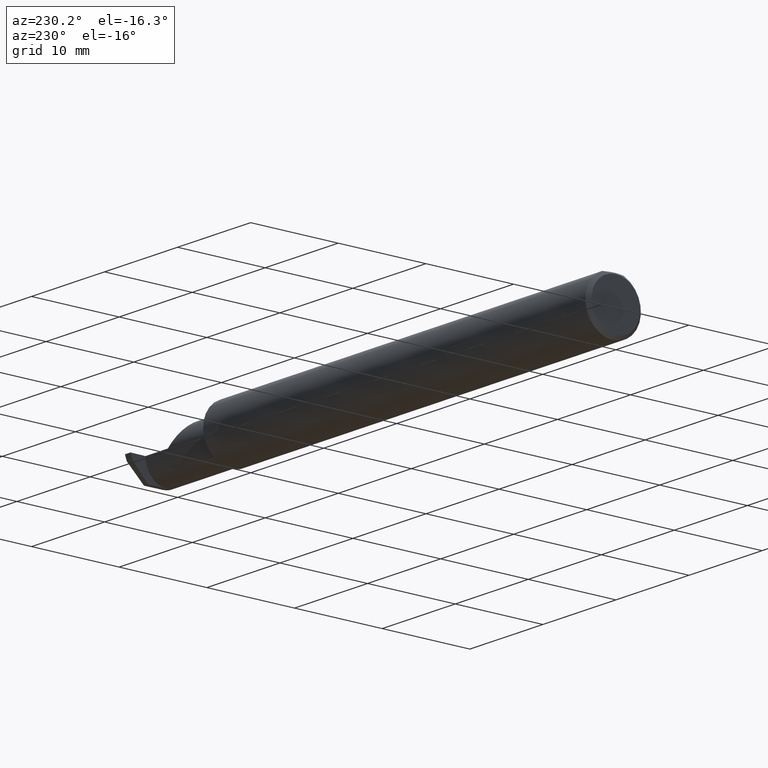
[diagram: clean part render]
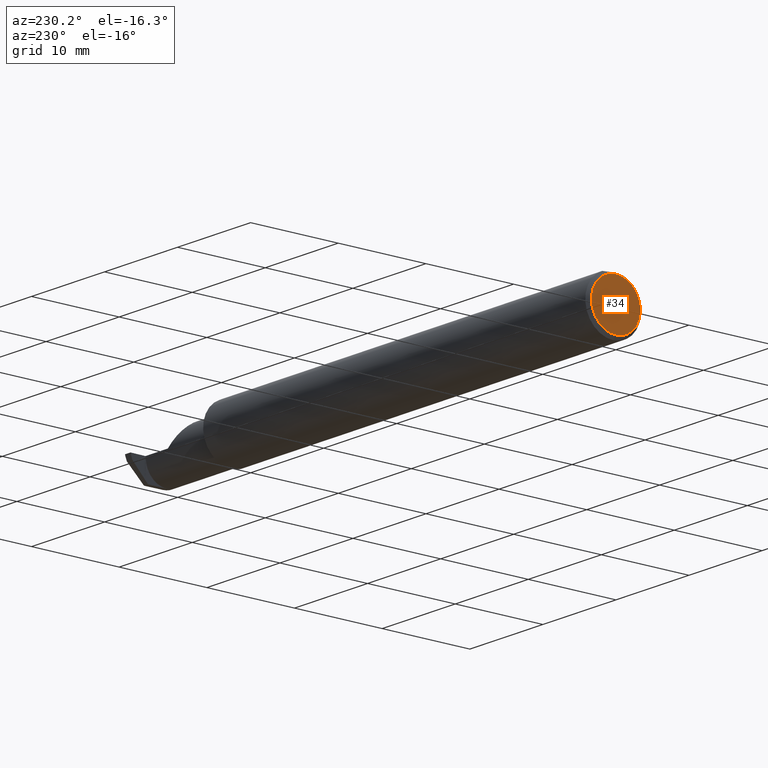
[diagram: same view with one face highlighted and labeled with its STEP entity id]
A machine part, auxiliary view. The second image highlights one B-rep face of the part: STEP entity #34.
In plain terms, the highlighted planar face has unit normal (1, 0, 0).
Its self-contained STEP definition (entity closure, byte-faithful):
#25 = VERTEX_POINT ( 'NONE', #584 ) ;
#31 = FACE_OUTER_BOUND ( 'NONE', #270, .T. ) ;
#34 = ADVANCED_FACE ( 'NONE', ( #31 ), #514, .F. ) ;
#57 = DIRECTION ( 'NONE',  ( -1.000000000000000000, -0.000000000000000000, -0.000000000000000000 ) ) ;
#82 = AXIS2_PLACEMENT_3D ( 'NONE', #401, #396, #580 ) ;
#95 = AXIS2_PLACEMENT_3D ( 'NONE', #121, #57, #476 ) ;
#121 = CARTESIAN_POINT ( 'NONE',  ( 0.000000000000000000, 0.000000000000000000, 0.000000000000000000 ) ) ;
#146 = CARTESIAN_POINT ( 'NONE',  ( 0.000000000000000000, 1.437123018799419134E-17, 0.1098500000000000032 ) ) ;
#262 = DIRECTION ( 'NONE',  ( -1.000000000000000000, -0.000000000000000000, -0.000000000000000000 ) ) ;
#270 = EDGE_LOOP ( 'NONE', ( #442, #474 ) ) ;
#317 = AXIS2_PLACEMENT_3D ( 'NONE', #745, #262, #432 ) ;
#396 = DIRECTION ( 'NONE',  ( 1.000000000000000000, 0.000000000000000000, 0.000000000000000000 ) ) ;
#401 = CARTESIAN_POINT ( 'NONE',  ( 0.000000000000000000, 0.000000000000000000, 0.000000000000000000 ) ) ;
#431 = CIRCLE ( 'NONE', #317, 0.1098500000000000032 ) ;
#432 = DIRECTION ( 'NONE',  ( 0.000000000000000000, 0.000000000000000000, 1.000000000000000000 ) ) ;
#442 = ORIENTED_EDGE ( 'NONE', *, *, #489, .T. ) ;
#474 = ORIENTED_EDGE ( 'NONE', *, *, #568, .T. ) ;
#476 = DIRECTION ( 'NONE',  ( 0.000000000000000000, 0.000000000000000000, 1.000000000000000000 ) ) ;
#489 = EDGE_CURVE ( 'NONE', #25, #680, #760, .T. ) ;
#514 = PLANE ( 'NONE',  #82 ) ;
#568 = EDGE_CURVE ( 'NONE', #680, #25, #431, .T. ) ;
#580 = DIRECTION ( 'NONE',  ( 0.000000000000000000, 0.000000000000000000, -1.000000000000000000 ) ) ;
#584 = CARTESIAN_POINT ( 'NONE',  ( 0.000000000000000000, 0.000000000000000000, -0.1098500000000000032 ) ) ;
#680 = VERTEX_POINT ( 'NONE', #146 ) ;
#745 = CARTESIAN_POINT ( 'NONE',  ( 0.000000000000000000, 0.000000000000000000, 0.000000000000000000 ) ) ;
#760 = CIRCLE ( 'NONE', #95, 0.1098500000000000032 ) ;